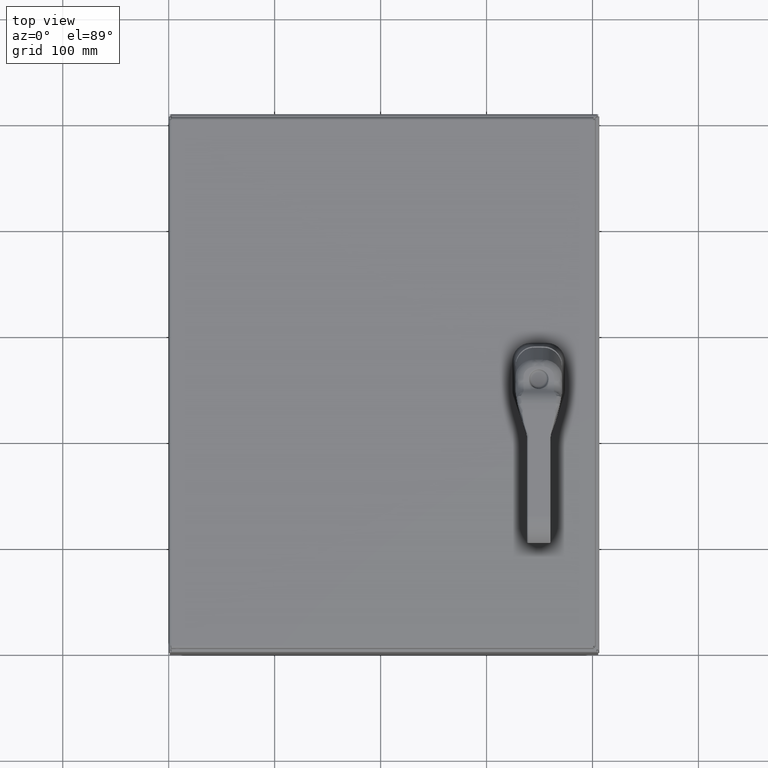
[diagram: clean part render]
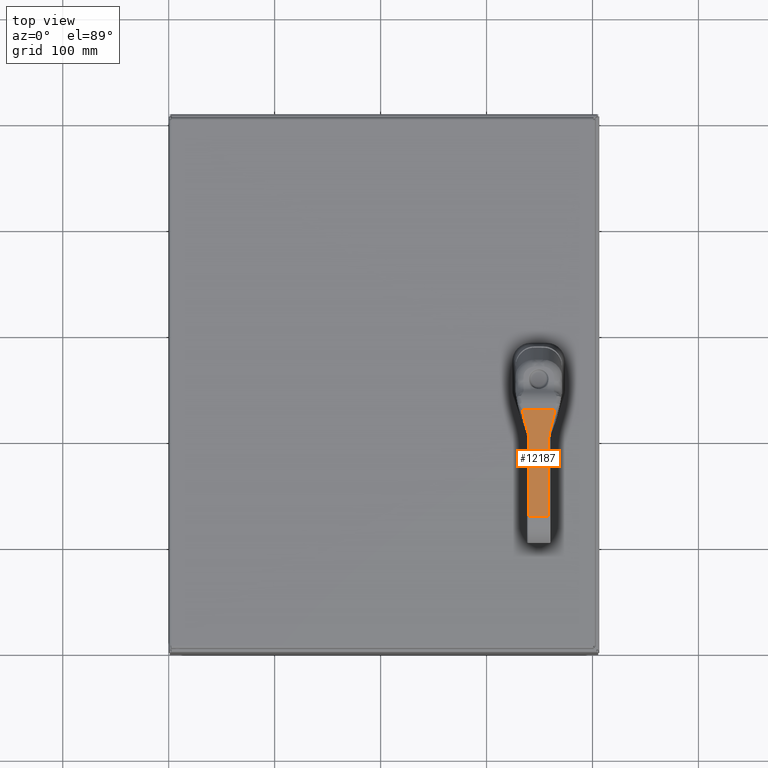
[diagram: same view with one face highlighted and labeled with its STEP entity id]
A machine part, top view. The second image highlights one B-rep face of the part: STEP entity #12187.
In plain terms, the highlighted planar face has unit normal (0, -0.006, -1).
Its self-contained STEP definition (entity closure, byte-faithful):
#1 = CARTESIAN_POINT ( 'NONE',  ( 14.33211860280426819, 8.949994676181130870, 9.071540730110406514 ) ) ;
#1186 = DIRECTION ( 'NONE',  ( -1.000000000000000000, -6.934358000000013587E-14, -6.934358000000012325E-14 ) ) ;
#1406 = B_SPLINE_CURVE_WITH_KNOTS ( 'NONE', 3,
 ( #29821, #69696, #65904, #19812, #59654, #37717, #8093, #47988 ),
 .UNSPECIFIED., .F., .F.,
 ( 4, 2, 2, 4 ),
 ( 0.0000000000000000000, 0.001862546052438483974, 0.003725092104876967947, 0.007450184209753988804 ),
 .UNSPECIFIED. ) ;
#2337 = CARTESIAN_POINT ( 'NONE',  ( 14.12235058261131648, 7.816594754421775981, 9.078324744516644174 ) ) ;
#3258 = VERTEX_POINT ( 'NONE', #46780 ) ;
#3439 = VERTEX_POINT ( 'NONE', #70674 ) ;
#4283 = CARTESIAN_POINT ( 'NONE',  ( 14.33081941876998222, 8.951660169959202662, 9.071530761225135464 ) ) ;
#5407 = CARTESIAN_POINT ( 'NONE',  ( 14.25348951527053565, 8.437810686315158293, 9.074606429603750968 ) ) ;
#5910 = CARTESIAN_POINT ( 'NONE',  ( 13.33898097254748372, 8.165875275674659761, 9.076234110802477772 ) ) ;
#8022 = CARTESIAN_POINT ( 'NONE',  ( 13.16933160538502179, 8.948169089543890564, 9.071551657238345001 ) ) ;
#8093 = CARTESIAN_POINT ( 'NONE',  ( 14.15501111602223006, 8.142857651306174560, 9.076371883791853890 ) ) ;
#8920 = VERTEX_POINT ( 'NONE', #53898 ) ;
#8999 = CARTESIAN_POINT ( 'NONE',  ( 13.23130344221107002, 8.500969257759983577, 9.074228391234052893 ) ) ;
#9054 = CARTESIAN_POINT ( 'NONE',  ( 14.12235058261123832, 8.958203660394863377, 9.071491594879217857 ) ) ;
#9706 = VERTEX_POINT ( 'NONE', #68825 ) ;
#11675 = VERTEX_POINT ( 'NONE', #70702 ) ;
#12187 = ADVANCED_FACE ( 'NONE', ( #24084 ), #36864, .F. ) ;
#13779 = CARTESIAN_POINT ( 'NONE',  ( 13.16777850211146905, 8.944390309759338464, 9.071574275288696754 ) ) ;
#14708 = EDGE_CURVE ( 'NONE', #30255, #47031, #22578, .T. ) ;
#15015 = CARTESIAN_POINT ( 'NONE',  ( 13.30820789562158701, 8.250478054423275864, 9.075727717199630007 ) ) ;
#15352 = CARTESIAN_POINT ( 'NONE',  ( 13.38001384473762201, 7.845009110262328278, 9.078154669156901946 ) ) ;
#15510 = CARTESIAN_POINT ( 'NONE',  ( 13.16333512942462036, 8.920248793471532878, 9.071718775381858890 ) ) ;
#16632 = CARTESIAN_POINT ( 'NONE',  ( 14.33523138736596358, 8.942338567818811867, 9.071586556079180852 ) ) ;
#18754 = ORIENTED_EDGE ( 'NONE', *, *, #14708, .T. ) ;
#19494 = CARTESIAN_POINT ( 'NONE',  ( 14.12209031608447951, 7.901738415714087083, 9.077815113437871730 ) ) ;
#19812 = CARTESIAN_POINT ( 'NONE',  ( 14.12691801173263784, 7.999392183694983061, 9.077230602572738505 ) ) ;
#20706 = CARTESIAN_POINT ( 'NONE',  ( 13.28731218206336351, 8.312581965830425190, 9.075355991543414547 ) ) ;
#20993 = CARTESIAN_POINT ( 'NONE',  ( 14.12235058261151011, 4.992128077739153014, 9.095230712354423375 ) ) ;
#21169 = CARTESIAN_POINT ( 'NONE',  ( 13.16294939341180381, 8.912039939158921342, 9.071767909835500632 ) ) ;
#21184 =( BOUNDED_CURVE ( )  B_SPLINE_CURVE ( 3, ( #2337, #70566, #47676, #19494 ),
 .UNSPECIFIED., .F., .F. ) 
 B_SPLINE_CURVE_WITH_KNOTS ( ( 4, 4 ),
 ( 4.712388980384690562, 4.787220405697034664 ),
 .UNSPECIFIED. ) 
 CURVE ( )  GEOMETRIC_REPRESENTATION_ITEM ( )  RATIONAL_B_SPLINE_CURVE ( ( 1.000000000000000000, 0.9995334092523686653, 0.9995334092523686653, 1.000000000000000000 ) ) 
 REPRESENTATION_ITEM ( '' )  );
#22074 = CARTESIAN_POINT ( 'NONE',  ( 14.33517914386852610, 8.821666376204575499, 9.072308844717660747 ) ) ;
#22120 = AXIS2_PLACEMENT_3D ( 'NONE', #25392, #36129, #64544 ) ;
#22578 = B_SPLINE_CURVE_WITH_KNOTS ( 'NONE', 3,
 ( #70347, #36444, #8022, #13779, #54126, #53652, #65836, #15510, #21169, #60073, #26203, #43903, #71800, #72551, #48652, #8999, #31950, #20706, #15015, #60561 ),
 .UNSPECIFIED., .F., .F.,
 ( 4, 2, 2, 2, 2, 2, 2, 2, 2, 4 ),
 ( 0.0000000000000000000, 0.0001577749510614633998, 0.0003155499021229267996, 0.0006310998042459345890, 0.001262199608491950710, 0.002524399216983980350, 0.005048798433968135907, 0.01009759686793641927, 0.01514639530190470262, 0.02019519373587298772 ),
 .UNSPECIFIED. ) ;
#23709 = B_SPLINE_CURVE_WITH_KNOTS ( 'NONE', 3,
 ( #56233, #62427, #51035, #5407, #55990, #61467, #27363, #33328, #22074, #73683, #67974, #55749, #33087, #45289, #27852, #16632, #68206, #33827, #1, #72963 ),
 .UNSPECIFIED., .F., .F.,
 ( 4, 2, 2, 2, 2, 2, 2, 2, 2, 4 ),
 ( 0.0000000000000000000, 0.004996077700154905217, 0.009992155400309810434, 0.01498823310046471478, 0.01748627195054215308, 0.01873529137558087310, 0.01935980108810027647, 0.01967205594435994520, 0.01982818337248980212, 0.01998431080061965556 ),
 .UNSPECIFIED. ) ;
#24084 = FACE_OUTER_BOUND ( 'NONE', #55290, .T. ) ;
#25392 = CARTESIAN_POINT ( 'NONE',  ( 14.61348341819211960, 8.958203660394897128, 9.071491594879251608 ) ) ;
#26187 = B_SPLINE_CURVE_WITH_KNOTS ( 'NONE', 3,
 ( #63474, #5910, #46045, #40294, #57748, #29362, #35096, #68232 ),
 .UNSPECIFIED., .F., .F.,
 ( 4, 2, 2, 4 ),
 ( 0.0000000000000000000, 0.001862532746664883210, 0.003725065493329766421, 0.007450130986659560597 ),
 .UNSPECIFIED. ) ;
#26203 = CARTESIAN_POINT ( 'NONE',  ( 13.16339529375856721, 8.871076913512595752, 9.072013095802759608 ) ) ;
#26375 = LINE ( 'NONE', #9054, #42385 ) ;
#26466 = VECTOR ( 'NONE', #40739, 39.37007874015748143 ) ;
#26658 =( BOUNDED_CURVE ( )  B_SPLINE_CURVE ( 3, ( #32285, #37989, #15352, #26797 ),
 .UNSPECIFIED., .F., .F. ) 
 B_SPLINE_CURVE_WITH_KNOTS ( ( 4, 4 ),
 ( 4.637557555072345572, 4.712388980384692339 ),
 .UNSPECIFIED. ) 
 CURVE ( )  GEOMETRIC_REPRESENTATION_ITEM ( )  RATIONAL_B_SPLINE_CURVE ( ( 1.000000000000000000, 0.9995334092523685543, 0.9995334092523685543, 1.000000000000000000 ) ) 
 REPRESENTATION_ITEM ( '' )  );
#26797 = CARTESIAN_POINT ( 'NONE',  ( 13.38001384473762378, 7.816594754421720026, 9.078324744516592659 ) ) ;
#27363 = CARTESIAN_POINT ( 'NONE',  ( 14.31553274262767772, 8.691803310111197334, 9.073086145734105656 ) ) ;
#27759 = ORIENTED_EDGE ( 'NONE', *, *, #32326, .T. ) ;
#27791 = CARTESIAN_POINT ( 'NONE',  ( 14.61348341819239316, 4.992128077739185876, 9.095230712354457125 ) ) ;
#27852 = CARTESIAN_POINT ( 'NONE',  ( 14.33680971811755356, 8.936330213417587487, 9.071622519345133639 ) ) ;
#29362 = CARTESIAN_POINT ( 'NONE',  ( 13.37654722428720966, 7.999238551265751340, 9.077231522146256282 ) ) ;
#29821 = CARTESIAN_POINT ( 'NONE',  ( 14.12209031608447951, 7.901738415714087083, 9.077815113437871730 ) ) ;
#30255 = VERTEX_POINT ( 'NONE', #42603 ) ;
#30676 = ORIENTED_EDGE ( 'NONE', *, *, #39487, .T. ) ;
#31348 = ORIENTED_EDGE ( 'NONE', *, *, #45201, .T. ) ;
#31752 = DIRECTION ( 'NONE',  ( -6.892728628474966738E-14, 0.9999820871165010505, -0.005985436168431603962 ) ) ;
#31950 = CARTESIAN_POINT ( 'NONE',  ( 13.24885650379483870, 8.437869241001695997, 9.074606079122062852 ) ) ;
#32285 = CARTESIAN_POINT ( 'NONE',  ( 13.38027411126444832, 7.901738415714034680, 9.077815113437820216 ) ) ;
#32326 = EDGE_CURVE ( 'NONE', #3258, #62717, #23709, .T. ) ;
#33087 = CARTESIAN_POINT ( 'NONE',  ( 14.33904405083766065, 8.920053061522741800, 9.071719946944011070 ) ) ;
#33328 = CARTESIAN_POINT ( 'NONE',  ( 14.33086726235642772, 8.789059925372896487, 9.072504012043804522 ) ) ;
#33827 = CARTESIAN_POINT ( 'NONE',  ( 14.33304225569517598, 8.948152246344397653, 9.071551758054129166 ) ) ;
#35096 = CARTESIAN_POINT ( 'NONE',  ( 13.38057399567354722, 7.950721814704233559, 9.077521921177932995 ) ) ;
#35825 = LINE ( 'NONE', #27791, #67005 ) ;
#36129 = DIRECTION ( 'NONE',  ( 6.975738942831073544E-14, -0.005985436168431605697, -0.9999820871165011615 ) ) ;
#36444 = CARTESIAN_POINT ( 'NONE',  ( 13.17026939191037549, 8.950024888452881910, 9.071540549273461096 ) ) ;
#36864 = PLANE ( 'NONE',  #22120 ) ;
#37637 = EDGE_CURVE ( 'NONE', #11675, #3439, #68361, .T. ) ;
#37717 = CARTESIAN_POINT ( 'NONE',  ( 14.14251403298903575, 8.095805871804651943, 9.076653514259479749 ) ) ;
#37989 = CARTESIAN_POINT ( 'NONE',  ( 13.38010064074478045, 7.873403579289631082, 9.077984712830597047 ) ) ;
#39487 = EDGE_CURVE ( 'NONE', #47031, #70127, #26187, .T. ) ;
#40294 = CARTESIAN_POINT ( 'NONE',  ( 13.35886502524254560, 8.095291829755586477, 9.076656591080414671 ) ) ;
#40739 = DIRECTION ( 'NONE',  ( 6.892728628474966738E-14, -0.9999820871165010505, 0.005985436168431603962 ) ) ;
#41339 = VECTOR ( 'NONE', #48143, 39.37007874015748143 ) ;
#42148 = CARTESIAN_POINT ( 'NONE',  ( 14.61348341819211960, 8.951660169959222202, 9.071530761225155004 ) ) ;
#42385 = VECTOR ( 'NONE', #31752, 39.37007874015748143 ) ;
#42603 = CARTESIAN_POINT ( 'NONE',  ( 13.17154500857883548, 8.951660169959094304, 9.071530761225055528 ) ) ;
#43096 = EDGE_CURVE ( 'NONE', #9706, #3258, #1406, .T. ) ;
#43113 = LINE ( 'NONE', #42148, #41339 ) ;
#43527 = ORIENTED_EDGE ( 'NONE', *, *, #71060, .F. ) ;
#43903 = CARTESIAN_POINT ( 'NONE',  ( 13.16713911009934002, 8.822070440904706601, 9.072306426170786864 ) ) ;
#45098 = VERTEX_POINT ( 'NONE', #20993 ) ;
#45201 = EDGE_CURVE ( 'NONE', #45098, #8920, #26375, .T. ) ;
#45289 = CARTESIAN_POINT ( 'NONE',  ( 14.33748775122456998, 8.932276343959992815, 9.071646783956657245 ) ) ;
#45515 = CARTESIAN_POINT ( 'NONE',  ( 13.33060885239361326, 8.188892298988260876, 9.076096341410798019 ) ) ;
#45681 = EDGE_CURVE ( 'NONE', #62717, #30255, #43113, .T. ) ;
#46045 = CARTESIAN_POINT ( 'NONE',  ( 13.34630343228053739, 8.142550840319186634, 9.076373720222269625 ) ) ;
#46176 = EDGE_CURVE ( 'NONE', #8920, #9706, #21184, .T. ) ;
#46780 = CARTESIAN_POINT ( 'NONE',  ( 14.17175557495527372, 8.188892298988319496, 9.076096341410856638 ) ) ;
#47031 = VERTEX_POINT ( 'NONE', #45515 ) ;
#47676 = CARTESIAN_POINT ( 'NONE',  ( 14.12226378660415449, 7.873403579289680820, 9.077984712830646785 ) ) ;
#47988 = CARTESIAN_POINT ( 'NONE',  ( 14.17175557495527372, 8.188892298988319496, 9.076096341410856638 ) ) ;
#48143 = DIRECTION ( 'NONE',  ( -1.000000000000000000, -6.934358000000013587E-14, -6.934358000000012325E-14 ) ) ;
#48652 = CARTESIAN_POINT ( 'NONE',  ( 13.20028656375871634, 8.628283616053201044, 9.073466345618724560 ) ) ;
#51035 = CARTESIAN_POINT ( 'NONE',  ( 14.21508427851829204, 8.312684910635868007, 9.075355375362878618 ) ) ;
#53652 = CARTESIAN_POINT ( 'NONE',  ( 13.16558425783382447, 8.936471835207528969, 9.071621671661681319 ) ) ;
#53898 = CARTESIAN_POINT ( 'NONE',  ( 14.12235058261131648, 7.816594754421775981, 9.078324744516644174 ) ) ;
#54126 = CARTESIAN_POINT ( 'NONE',  ( 13.16716244582258888, 8.942435319287973527, 9.071585976968981058 ) ) ;
#55290 = EDGE_LOOP ( 'NONE', ( #31348, #67282, #61998, #27759, #56503, #18754, #30676, #64445, #66844, #43527 ) ) ;
#55749 = CARTESIAN_POINT ( 'NONE',  ( 14.33942560676103106, 8.911798782812111241, 9.071769353287361781 ) ) ;
#55990 = CARTESIAN_POINT ( 'NONE',  ( 14.27101208676403310, 8.500799190212362078, 9.074229409180807338 ) ) ;
#56233 = CARTESIAN_POINT ( 'NONE',  ( 14.17175557495527372, 8.188892298988319496, 9.076096341410856638 ) ) ;
#56503 = ORIENTED_EDGE ( 'NONE', *, *, #45681, .T. ) ;
#57748 = CARTESIAN_POINT ( 'NONE',  ( 13.36410450916238801, 8.071323091979882847, 9.076800057000298239 ) ) ;
#58432 = CARTESIAN_POINT ( 'NONE',  ( 13.38001384473781918, 4.992128077739100611, 9.095230712354371860 ) ) ;
#59654 = CARTESIAN_POINT ( 'NONE',  ( 14.13003065649681389, 8.023728563266748992, 9.077084936116934344 ) ) ;
#60073 = CARTESIAN_POINT ( 'NONE',  ( 13.16256787798508121, 8.887469828565183860, 9.071914975298478012 ) ) ;
#60561 = CARTESIAN_POINT ( 'NONE',  ( 13.33060885239361326, 8.188892298988260876, 9.076096341410798019 ) ) ;
#61467 = CARTESIAN_POINT ( 'NONE',  ( 14.30197028895113043, 8.627811566512681551, 9.073469171091803176 ) ) ;
#61998 = ORIENTED_EDGE ( 'NONE', *, *, #43096, .T. ) ;
#62427 = CARTESIAN_POINT ( 'NONE',  ( 14.19416842655074618, 8.250510756226919540, 9.075727521461629976 ) ) ;
#62717 = VERTEX_POINT ( 'NONE', #4283 ) ;
#63474 = CARTESIAN_POINT ( 'NONE',  ( 13.33060885239361326, 8.188892298988260876, 9.076096341410798019 ) ) ;
#64445 = ORIENTED_EDGE ( 'NONE', *, *, #72481, .T. ) ;
#64544 = DIRECTION ( 'NONE',  ( -6.892728628474966738E-14, 0.9999820871165010505, -0.005985436168431604829 ) ) ;
#65836 = CARTESIAN_POINT ( 'NONE',  ( 13.16490220721830440, 8.932435660596256710, 9.071645830359933882 ) ) ;
#65904 = CARTESIAN_POINT ( 'NONE',  ( 14.12287842337008392, 7.950659122399372336, 9.077522296425495796 ) ) ;
#66844 = ORIENTED_EDGE ( 'NONE', *, *, #37637, .T. ) ;
#67005 = VECTOR ( 'NONE', #1186, 39.37007874015748143 ) ;
#67282 = ORIENTED_EDGE ( 'NONE', *, *, #46176, .T. ) ;
#67541 = CARTESIAN_POINT ( 'NONE',  ( 13.38027411126444832, 7.901738415714034680, 9.077815113437820216 ) ) ;
#67974 = CARTESIAN_POINT ( 'NONE',  ( 14.33978831642073892, 8.887097285908316380, 9.071917205168794851 ) ) ;
#68206 = CARTESIAN_POINT ( 'NONE',  ( 14.33460650126288805, 8.944334019413519243, 9.071574612217084166 ) ) ;
#68232 = CARTESIAN_POINT ( 'NONE',  ( 13.38027411126444832, 7.901738415714034680, 9.077815113437820216 ) ) ;
#68361 = LINE ( 'NONE', #58432, #26466 ) ;
#68825 = CARTESIAN_POINT ( 'NONE',  ( 14.12209031608447951, 7.901738415714087083, 9.077815113437871730 ) ) ;
#69696 = CARTESIAN_POINT ( 'NONE',  ( 14.12194037358441356, 7.926230163478470203, 9.077668517019011674 ) ) ;
#70127 = VERTEX_POINT ( 'NONE', #67541 ) ;
#70347 = CARTESIAN_POINT ( 'NONE',  ( 13.17154500857883548, 8.951660169959094304, 9.071530761225055528 ) ) ;
#70566 = CARTESIAN_POINT ( 'NONE',  ( 14.12235058261130938, 7.845009110262380680, 9.078154669156951684 ) ) ;
#70674 = CARTESIAN_POINT ( 'NONE',  ( 13.38001384473781918, 4.992128077739100611, 9.095230712354371860 ) ) ;
#70702 = CARTESIAN_POINT ( 'NONE',  ( 13.38001384473762378, 7.816594754421720026, 9.078324744516592659 ) ) ;
#71060 = EDGE_CURVE ( 'NONE', #45098, #3439, #35825, .T. ) ;
#71800 = CARTESIAN_POINT ( 'NONE',  ( 13.17142956896307560, 8.789555699433988067, 9.072501044566573469 ) ) ;
#72481 = EDGE_CURVE ( 'NONE', #70127, #11675, #26658, .T. ) ;
#72551 = CARTESIAN_POINT ( 'NONE',  ( 13.18670984423270909, 8.692443623201310032, 9.073082313112244890 ) ) ;
#72963 = CARTESIAN_POINT ( 'NONE',  ( 14.33081941876998222, 8.951660169959202662, 9.071530761225135464 ) ) ;
#73683 = CARTESIAN_POINT ( 'NONE',  ( 14.33894899732116102, 8.870714877690073052, 9.072015262783963863 ) ) ;